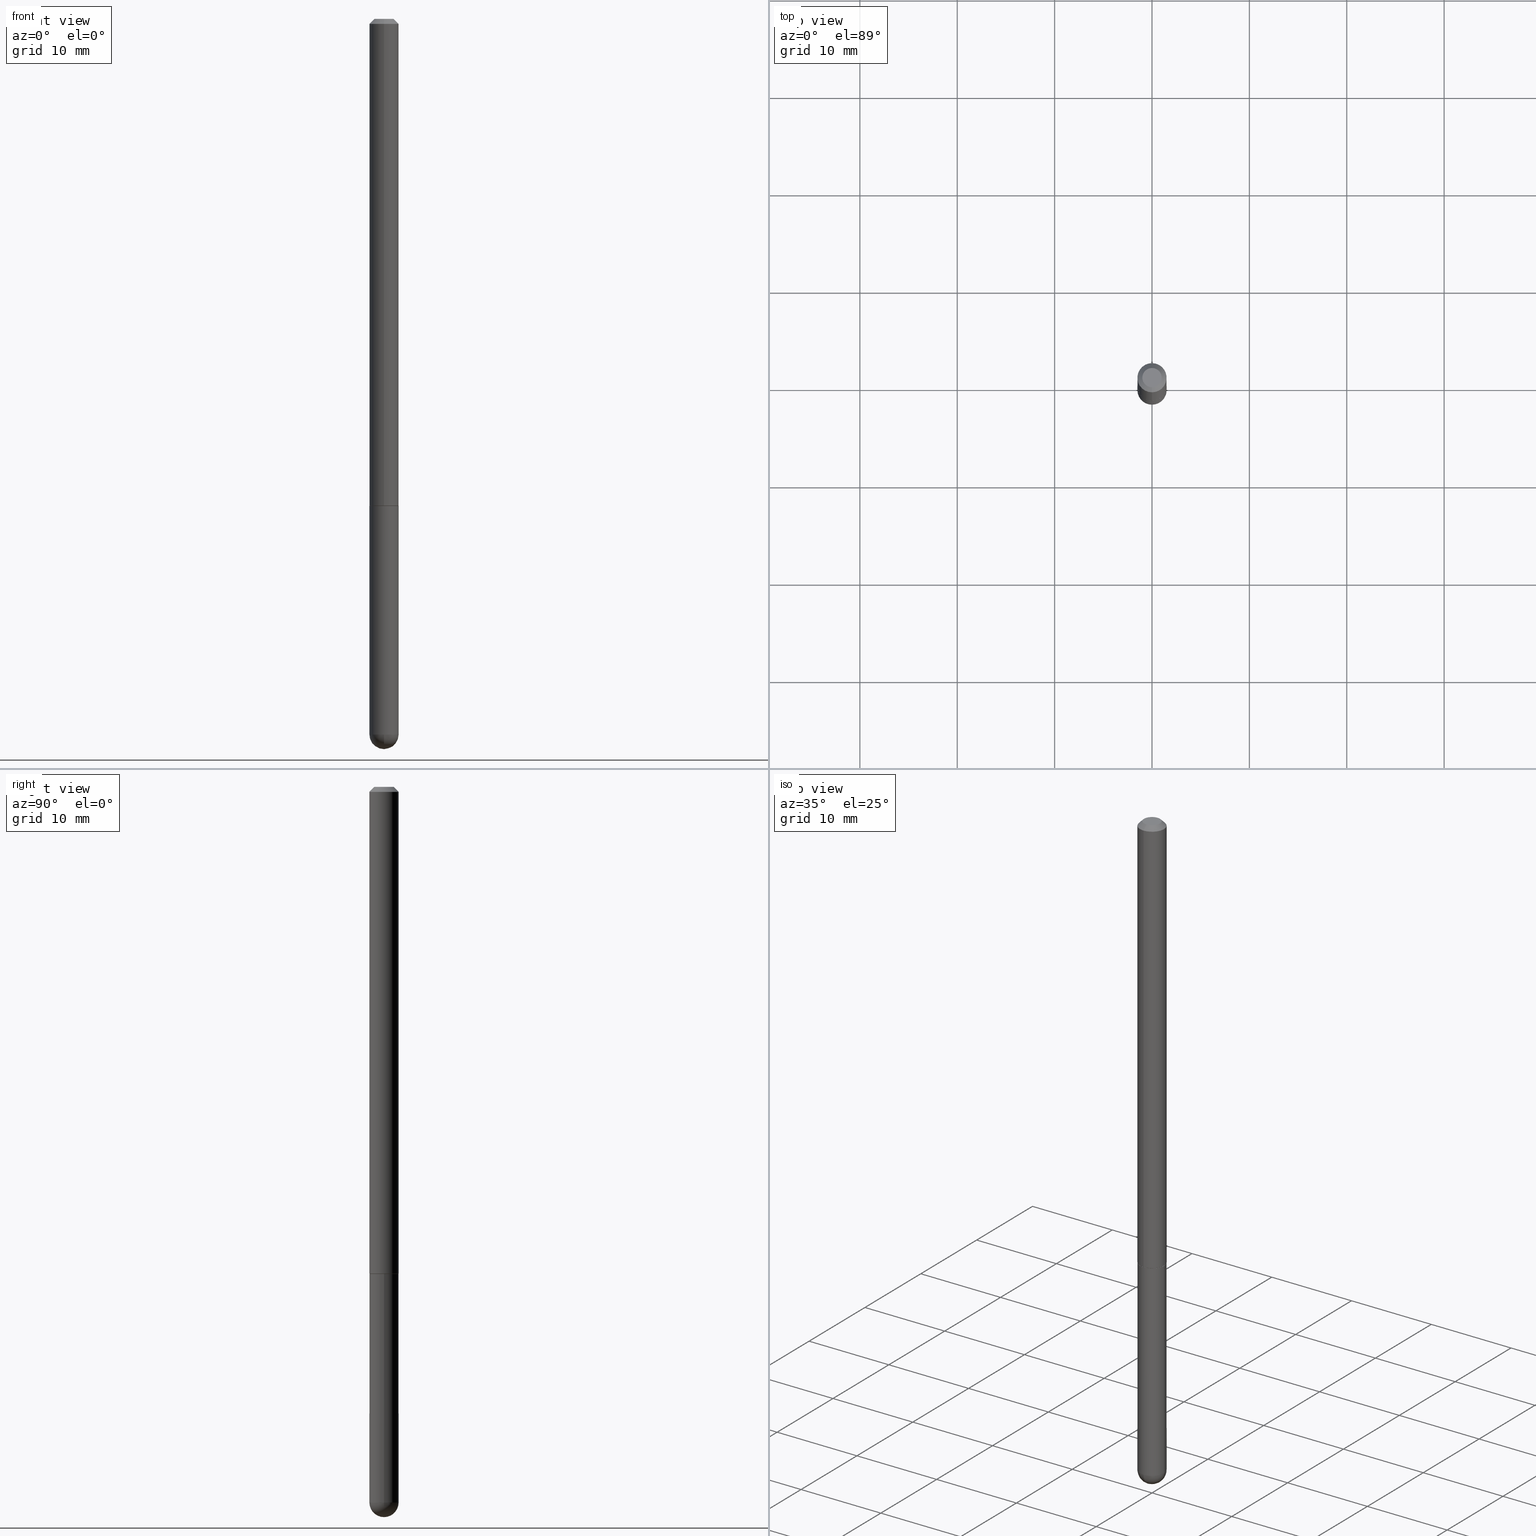
[diagram: canonical four-view strip — front | top / right | iso, engineering-drawing reading convention]
A machine part, canonical four-view strip (front | top / right | iso — engineering-drawing reading convention). The complete STEP part file that produces these views, byte-faithful:
ISO-10303-21;
HEADER;
FILE_DESCRIPTION (( 'STEP AP203' ),
    '1' );
FILE_NAME ('43302.STEP',
    '2024-04-10T11:42:45',
    ( '' ),
    ( '' ),
    'SwSTEP 2.0',
    'SolidWorks 2023',
    '' );
FILE_SCHEMA (( 'CONFIG_CONTROL_DESIGN' ));
ENDSEC;

DATA;
#1 = EDGE_CURVE ( 'NONE', #302, #161, #203, .T. ) ;
#2 = FACE_OUTER_BOUND ( 'NONE', #410, .T. ) ;
#3 = CIRCLE ( 'NONE', #245, 0.05905000000000001914 ) ;
#4 = LENGTH_MEASURE_WITH_UNIT ( LENGTH_MEASURE( 0.02539999999999999897 ), #391 );
#5 = LOCAL_TIME ( 7, 42, 45.00000000000000000, #243 ) ;
#6 = EDGE_LOOP ( 'NONE', ( #208, #60 ) ) ;
#7 = EDGE_LOOP ( 'NONE', ( #69, #233, #79, #101, #328 ) ) ;
#8 = CALENDAR_DATE ( 2024, 10, 4 ) ;
#9 = EDGE_LOOP ( 'NONE', ( #174, #263, #37, #258 ) ) ;
#10 = DATE_AND_TIME ( #323, #140 ) ;
#11 = CLOSED_SHELL ( 'NONE', ( #54, #48, #78, #357, #277, #188, #211, #322 ) ) ;
#12 = AXIS2_PLACEMENT_3D ( 'NONE', #348, #59, #24 ) ;
#13 = ORIENTED_EDGE ( 'NONE', *, *, #106, .F. ) ;
#14 = EDGE_CURVE ( 'NONE', #271, #74, #327, .T. ) ;
#15 = LINE ( 'NONE', #180, #33 ) ;
#16 = DIRECTION ( 'NONE',  ( -6.982962677686265922E-15, -1.000000000000000000, 3.469747663417776213E-15 ) ) ;
#17 = AXIS2_PLACEMENT_3D ( 'NONE', #44, #50, #274 ) ;
#18 = AXIS2_PLACEMENT_3D ( 'NONE', #315, #319, #191 ) ;
#19 = CARTESIAN_POINT ( 'NONE',  ( -4.195754854662709114E-16, -0.05905000000001047605, -2.893749999999999822 ) ) ;
#20 = CARTESIAN_POINT ( 'NONE',  ( -3.365074267906932410E-16, -0.03904999999999995974, 2.038402692538037748E-16 ) ) ;
#21 = LINE ( 'NONE', #116, #403 ) ;
#22 = CIRCLE ( 'NONE', #361, 0.05905000000000001914 ) ;
#23 = ORIENTED_EDGE ( 'NONE', *, *, #249, .T. ) ;
#24 = DIRECTION ( 'NONE',  ( 1.000000000000000000, -6.982962677686266711E-15, 4.876176775795935793E-29 ) ) ;
#25 = EDGE_LOOP ( 'NONE', ( #62, #389, #359, #13 ) ) ;
#26 = DIRECTION ( 'NONE',  ( 1.000000000000000000, -6.982962677686270655E-15, 0.000000000000000000 ) ) ;
#27 = ORIENTED_EDGE ( 'NONE', *, *, #294, .F. ) ;
#28 = CARTESIAN_POINT ( 'NONE',  ( -4.053609834396394049E-16, -0.05805000000000685306, -1.968499999999999472 ) ) ;
#29 = EDGE_LOOP ( 'NONE', ( #268, #229 ) ) ;
#30 = CARTESIAN_POINT ( 'NONE',  ( 4.905212484552284025E-31, -6.962520248246431022E-17, -0.02000000000000006981 ) ) ;
#31 = COORDINATED_UNIVERSAL_TIME_OFFSET ( 5, 0, .BEHIND. ) ;
#32 = VERTEX_POINT ( 'NONE', #236 ) ;
#33 = VECTOR ( 'NONE', #179, 39.37007874015748143 ) ;
#34 = APPLICATION_PROTOCOL_DEFINITION ( 'international standard', 'config_control_design', 1994, #119 ) ;
#35 =( NAMED_UNIT ( * ) PLANE_ANGLE_UNIT ( ) SI_UNIT ( $, .RADIAN. ) );
#36 = FACE_OUTER_BOUND ( 'NONE', #234, .T. ) ;
#37 = ORIENTED_EDGE ( 'NONE', *, *, #193, .F. ) ;
#38 = PERSON_AND_ORGANIZATION_ROLE ( 'design_supplier' ) ;
#39 = CARTESIAN_POINT ( 'NONE',  ( 4.124700581087863588E-16, 0.05804999999999314181, -1.968500000000000139 ) ) ;
#40 = PERSON_AND_ORGANIZATION_ROLE ( 'creator' ) ;
#41 = ORIENTED_EDGE ( 'NONE', *, *, #380, .F. ) ;
#42 = AXIS2_PLACEMENT_3D ( 'NONE', #97, #377, #230 ) ;
#43 = EDGE_CURVE ( 'NONE', #316, #256, #75, .T. ) ;
#44 = CARTESIAN_POINT ( 'NONE',  ( 4.827955387920569283E-29, -6.852860554336525173E-15, -1.968499999999999694 ) ) ;
#45 = DIRECTION ( 'NONE',  ( -4.851104656540954020E-15, -0.7071067811865485719, -0.7071067811865464625 ) ) ;
#46 = CARTESIAN_POINT ( 'NONE',  ( 4.827955387920569283E-29, -6.852860554336525173E-15, -1.968499999999999694 ) ) ;
#47 = AXIS2_PLACEMENT_3D ( 'NONE', #196, #264, #176 ) ;
#48 = ADVANCED_FACE ( 'NONE', ( #36 ), #136, .T. ) ;
#49 = APPROVAL_PERSON_ORGANIZATION ( #321, #64, #105 ) ;
#50 = DIRECTION ( 'NONE',  ( -2.452606242276133797E-29, 3.481260124123203654E-15, 1.000000000000000000 ) ) ;
#51 = ADVANCED_FACE ( 'NONE', ( #107 ), #366, .T. ) ;
#52 = CALENDAR_DATE ( 2024, 10, 4 ) ;
#53 = FACE_OUTER_BOUND ( 'NONE', #293, .T. ) ;
#54 = ADVANCED_FACE ( 'NONE', ( #241 ), #333, .T. ) ;
#55 = CARTESIAN_POINT ( 'NONE',  ( 7.076575357898237682E-29, -1.010347412427735067E-14, -2.893749999999999822 ) ) ;
#56 = ORIENTED_EDGE ( 'NONE', *, *, #190, .F. ) ;
#57 = CLOSED_SHELL ( 'NONE', ( #51, #171, #381, #397, #290 ) ) ;
#58 = CC_DESIGN_APPROVAL ( #64, ( #318 ) ) ;
#59 = DIRECTION ( 'NONE',  ( -2.445468806185136597E-29, 3.491481338843145583E-15, 1.000000000000000000 ) ) ;
#60 = ORIENTED_EDGE ( 'NONE', *, *, #219, .T. ) ;
#61 = CARTESIAN_POINT ( 'NONE',  ( 4.123439461174440441E-16, 0.05904999999998979815, -2.893749999999999822 ) ) ;
#62 = ORIENTED_EDGE ( 'NONE', *, *, #114, .F. ) ;
#63 = FACE_OUTER_BOUND ( 'NONE', #6, .T. ) ;
#64 = APPROVAL ( #270, 'UNSPECIFIED' ) ;
#65 = APPLICATION_CONTEXT ( 'configuration controlled 3d designs of mechanical parts and assemblies' ) ;
#66 = VECTOR ( 'NONE', #330, 39.37007874015748143 ) ;
#67 = CC_DESIGN_APPROVAL ( #170, ( #132 ) ) ;
#68 = CARTESIAN_POINT ( 'NONE',  ( 3.425143193405115234E-16, 0.03904999999999995974, -6.804614644021811144E-17 ) ) ;
#69 = ORIENTED_EDGE ( 'NONE', *, *, #148, .F. ) ;
#70 = ORIENTED_EDGE ( 'NONE', *, *, #338, .F. ) ;
#71 = EDGE_CURVE ( 'NONE', #364, #142, #396, .T. ) ;
#72 = CALENDAR_DATE ( 2024, 10, 4 ) ;
#73 = CARTESIAN_POINT ( 'NONE',  ( 4.123439461173745750E-16, 0.05904999999999994975, -0.02000000000000027450 ) ) ;
#74 = VERTEX_POINT ( 'NONE', #370 ) ;
#75 = CIRCLE ( 'NONE', #215, 0.05905000000000001914 ) ;
#76 = PERSON_AND_ORGANIZATION ( #220, #84 ) ;
#77 = APPROVAL_ROLE ( '' ) ;
#78 = ADVANCED_FACE ( 'NONE', ( #53 ), #287, .T. ) ;
#79 = ORIENTED_EDGE ( 'NONE', *, *, #113, .T. ) ;
#80 = DIRECTION ( 'NONE',  ( 1.000000000000000000, -6.982962677686266711E-15, 4.876176775795935793E-29 ) ) ;
#81 = CC_DESIGN_PERSON_AND_ORGANIZATION_ASSIGNMENT ( #386, #38, ( #131 ) ) ;
#82 = CONICAL_SURFACE ( 'NONE', #130, 0.05804999999999999744, 0.7853981633975165577 ) ;
#83 = DIRECTION ( 'NONE',  ( -4.937700262164884886E-15, -0.7071067811865933139, 0.7071067811865017205 ) ) ;
#84 = ORGANIZATION ( 'UNSPECIFIED', 'UNSPECIFIED', '' ) ;
#85 = MANIFOLD_SOLID_BREP ( 'Body-Move/Copy2[2]', #11 ) ;
#86 = APPROVAL_DATE_TIME ( #213, #64 ) ;
#87 = DIRECTION ( 'NONE',  ( -2.452606242276134078E-29, 3.481260124123204048E-15, 1.000000000000000000 ) ) ;
#88 = CARTESIAN_POINT ( 'NONE',  ( -1.665247566385061000E-45, 2.363673324206124088E-31, 6.789706140679283782E-17 ) ) ;
#89 = CARTESIAN_POINT ( 'NONE',  ( 6.745455579984352556E-29, -1.057765649241740097E-14, -2.893749999999999822 ) ) ;
#90 =( GEOMETRIC_REPRESENTATION_CONTEXT ( 3 ) GLOBAL_UNCERTAINTY_ASSIGNED_CONTEXT ( ( #104 ) ) GLOBAL_UNIT_ASSIGNED_CONTEXT ( ( #168, #35, #355 ) ) REPRESENTATION_CONTEXT ( 'NONE', 'WORKASPACE' ) );
#91 = SHAPE_DEFINITION_REPRESENTATION ( #384, #401 ) ;
#92 = ORIENTED_EDGE ( 'NONE', *, *, #71, .F. ) ;
#93 = FACE_OUTER_BOUND ( 'NONE', #127, .T. ) ;
#94 = LINE ( 'NONE', #222, #217 ) ;
#95 = CARTESIAN_POINT ( 'NONE',  ( 7.076575357898237682E-29, -1.010347412427735067E-14, -2.893749999999999822 ) ) ;
#96 = DIRECTION ( 'NONE',  ( -2.445468806185136597E-29, 3.491481338843145583E-15, 1.000000000000000000 ) ) ;
#97 = CARTESIAN_POINT ( 'NONE',  ( 4.825502781678292621E-29, -6.849379294212400691E-15, -1.967499999999999805 ) ) ;
#98 = PERSON_AND_ORGANIZATION_ROLE ( 'creator' ) ;
#99 = ORIENTED_EDGE ( 'NONE', *, *, #231, .F. ) ;
#100 = DIRECTION ( 'NONE',  ( 1.000000000000000000, 0.000000000000000000, 0.000000000000000000 ) ) ;
#101 = ORIENTED_EDGE ( 'NONE', *, *, #226, .T. ) ;
#102 = DIMENSIONAL_EXPONENTS ( 1.000000000000000000, 0.000000000000000000, 0.000000000000000000, 0.000000000000000000, 0.000000000000000000, 0.000000000000000000, 0.000000000000000000 ) ;
#103 = APPROVAL_ROLE ( '' ) ;
#104 = UNCERTAINTY_MEASURE_WITH_UNIT (LENGTH_MEASURE( 1.000000000000000082E-05 ), #168, 'distance_accuracy_value', 'NONE');
#105 = APPROVAL_ROLE ( '' ) ;
#106 = EDGE_CURVE ( 'NONE', #161, #349, #392, .T. ) ;
#107 = FACE_OUTER_BOUND ( 'NONE', #137, .T. ) ;
#108 = ORIENTED_EDGE ( 'NONE', *, *, #1, .T. ) ;
#109 = DIRECTION ( 'NONE',  ( -2.452606242276133797E-29, 3.481260124123203654E-15, 1.000000000000000000 ) ) ;
#110 = CARTESIAN_POINT ( 'NONE',  ( 4.827955387920569283E-29, -6.852860554336525173E-15, -1.968499999999999694 ) ) ;
#111 = AXIS2_PLACEMENT_3D ( 'NONE', #95, #155, #352 ) ;
#112 = DIRECTION ( 'NONE',  ( -6.982962677686265922E-15, -1.000000000000000000, 4.706025828879006993E-15 ) ) ;
#113 = EDGE_CURVE ( 'NONE', #199, #32, #300, .T. ) ;
#114 = EDGE_CURVE ( 'NONE', #74, #161, #218, .T. ) ;
#115 = DIRECTION ( 'NONE',  ( 2.452606242276133797E-29, -3.481260124123203654E-15, -1.000000000000000000 ) ) ;
#116 = CARTESIAN_POINT ( 'NONE',  ( -0.05905000000000001914, 4.195754854663392958E-16, -2.904631170795522943E-30 ) ) ;
#117 = CIRCLE ( 'NONE', #17, 0.05804999999999999744 ) ;
#118 = AXIS2_PLACEMENT_3D ( 'NONE', #365, #207, #100 ) ;
#119 = APPLICATION_CONTEXT ( 'configuration controlled 3d designs of mechanical parts and assemblies' ) ;
#120 = DIRECTION ( 'NONE',  ( -2.445468806185136597E-29, 3.491481338843145583E-15, 1.000000000000000000 ) ) ;
#121 = PLANE ( 'NONE',  #18 ) ;
#122 = VERTEX_POINT ( 'NONE', #20 ) ;
#123 = FACE_OUTER_BOUND ( 'NONE', #25, .T. ) ;
#124 = VECTOR ( 'NONE', #87, 39.37007874015748143 ) ;
#125 = AXIS2_PLACEMENT_3D ( 'NONE', #382, #311, #383 ) ;
#126 = DIRECTION ( 'NONE',  ( -6.982962677686265922E-15, -1.000000000000000000, 3.469747663417776213E-15 ) ) ;
#127 = EDGE_LOOP ( 'NONE', ( #185, #56 ) ) ;
#128 = CARTESIAN_POINT ( 'NONE',  ( 0.05905000000000001914, -7.285324961630105839E-15, -1.968499999999999694 ) ) ;
#129 = ORIENTED_EDGE ( 'NONE', *, *, #148, .T. ) ;
#130 = AXIS2_PLACEMENT_3D ( 'NONE', #110, #247, #214 ) ;
#131 = PRODUCT_DEFINITION_FORMATION_WITH_SPECIFIED_SOURCE ( 'ANY', '', #162, .NOT_KNOWN. ) ;
#132 = PRODUCT_DEFINITION ( 'UNKNOWN', '', #131, #337 ) ;
#133 = DIRECTION ( 'NONE',  ( 1.000000000000000000, -6.982962677686270655E-15, 0.000000000000000000 ) ) ;
#134 = DATE_AND_TIME ( #8, #178 ) ;
#135 = PERSON_AND_ORGANIZATION_ROLE ( 'design_owner' ) ;
#136 = CYLINDRICAL_SURFACE ( 'NONE', #177, 0.05905000000000010935 ) ;
#137 = EDGE_LOOP ( 'NONE', ( #154, #129, #143, #331, #284 ) ) ;
#138 = CC_DESIGN_DATE_AND_TIME_ASSIGNMENT ( #134, #265, ( #318 ) ) ;
#139 = EDGE_CURVE ( 'NONE', #364, #271, #117, .T. ) ;
#140 = LOCAL_TIME ( 7, 42, 45.00000000000000000, #261 ) ;
#141 = COORDINATED_UNIVERSAL_TIME_OFFSET ( 5, 0, .BEHIND. ) ;
#142 = VERTEX_POINT ( 'NONE', #210 ) ;
#143 = ORIENTED_EDGE ( 'NONE', *, *, #371, .F. ) ;
#144 = ORIENTED_EDGE ( 'NONE', *, *, #71, .T. ) ;
#145 = CARTESIAN_POINT ( 'NONE',  ( -1.665247566385061000E-45, 2.363673324206124088E-31, 6.789706140679283782E-17 ) ) ;
#146 = VECTOR ( 'NONE', #272, 39.37007874015748143 ) ;
#147 = CARTESIAN_POINT ( 'NONE',  ( 4.123439461173745750E-16, 0.05904999999999994975, -0.02000000000000027450 ) ) ;
#148 = EDGE_CURVE ( 'NONE', #354, #316, #21, .T. ) ;
#149 = CARTESIAN_POINT ( 'NONE',  ( -4.053609834396394049E-16, -0.05805000000000685306, -1.968499999999999472 ) ) ;
#150 = FACE_OUTER_BOUND ( 'NONE', #298, .T. ) ;
#151 = DIRECTION ( 'NONE',  ( 6.982962677686265922E-15, 1.000000000000000000, 0.000000000000000000 ) ) ;
#152 = AXIS2_PLACEMENT_3D ( 'NONE', #89, #182, #151 ) ;
#153 = DIRECTION ( 'NONE',  ( 1.000000000000000000, -6.982962677686265922E-15, 4.883557194083112340E-29 ) ) ;
#154 = ORIENTED_EDGE ( 'NONE', *, *, #338, .T. ) ;
#155 = DIRECTION ( 'NONE',  ( -2.445468806185136597E-29, 3.491481338843145583E-15, 1.000000000000000000 ) ) ;
#156 = ORIENTED_EDGE ( 'NONE', *, *, #206, .F. ) ;
#157 = FACE_OUTER_BOUND ( 'NONE', #7, .T. ) ;
#158 = CC_DESIGN_DATE_AND_TIME_ASSIGNMENT ( #198, #363, ( #132 ) ) ;
#159 = LOCAL_TIME ( 7, 42, 45.00000000000000000, #31 ) ;
#160 = CARTESIAN_POINT ( 'NONE',  ( 6.745455579984352556E-29, -1.057765649241740097E-14, -2.893749999999999822 ) ) ;
#161 = VERTEX_POINT ( 'NONE', #147 ) ;
#162 = PRODUCT ( '43302', '43302', '', ( #205 ) ) ;
#163 = DIRECTION ( 'NONE',  ( 6.982962677686265922E-15, 1.000000000000000000, -3.469747663417776213E-15 ) ) ;
#164 = VERTEX_POINT ( 'NONE', #339 ) ;
#165 = CIRCLE ( 'NONE', #225, 0.03904999999999995974 ) ;
#166 = APPROVAL_PERSON_ORGANIZATION ( #237, #289, #77 ) ;
#167 = APPROVAL_STATUS ( 'not_yet_approved' ) ;
#168 =( CONVERSION_BASED_UNIT ( 'INCH', #4 ) LENGTH_UNIT ( ) NAMED_UNIT ( #102 ) );
#169 = CARTESIAN_POINT ( 'NONE',  ( 0.000000000000000000, 0.000000000000000000, 0.000000000000000000 ) ) ;
#170 = APPROVAL ( #266, 'UNSPECIFIED' ) ;
#171 = ADVANCED_FACE ( 'NONE', ( #150 ), #276, .T. ) ;
#172 = PERSON_AND_ORGANIZATION ( #220, #84 ) ;
#173 = ORIENTED_EDGE ( 'NONE', *, *, #356, .T. ) ;
#174 = ORIENTED_EDGE ( 'NONE', *, *, #249, .F. ) ;
#175 = DIRECTION ( 'NONE',  ( -2.452606242276133797E-29, 3.481260124123203654E-15, 1.000000000000000000 ) ) ;
#176 = DIRECTION ( 'NONE',  ( -6.982962677686265922E-15, -1.000000000000000000, 4.706025828879006993E-15 ) ) ;
#177 = AXIS2_PLACEMENT_3D ( 'NONE', #169, #109, #267 ) ;
#178 = LOCAL_TIME ( 7, 42, 45.00000000000000000, #141 ) ;
#179 = DIRECTION ( 'NONE',  ( -2.445468806185136877E-29, 3.491481338843145188E-15, 1.000000000000000000 ) ) ;
#180 = CARTESIAN_POINT ( 'NONE',  ( 0.05905000000000001914, -4.123439461173741806E-16, 2.879382386107500921E-30 ) ) ;
#181 = PRODUCT_RELATED_PRODUCT_CATEGORY ( 'detail', '', ( #162 ) ) ;
#182 = DIRECTION ( 'NONE',  ( -1.000000000000000000, 6.982962677686265922E-15, -4.883557194083112340E-29 ) ) ;
#183 = CARTESIAN_POINT ( 'NONE',  ( 4.825502781678292621E-29, -6.849379294212400691E-15, -1.967499999999999805 ) ) ;
#184 = AXIS2_PLACEMENT_3D ( 'NONE', #405, #189, #253 ) ;
#185 = ORIENTED_EDGE ( 'NONE', *, *, #139, .F. ) ;
#186 = CARTESIAN_POINT ( 'NONE',  ( -0.05905000000000001914, -8.068652084428701697E-15, -1.968499999999999694 ) ) ;
#187 = EDGE_LOOP ( 'NONE', ( #312, #273, #374, #92 ) ) ;
#188 = ADVANCED_FACE ( 'NONE', ( #373 ), #82, .T. ) ;
#189 = DIRECTION ( 'NONE',  ( -1.000000000000000000, 6.982962677686265922E-15, -4.883557194083112340E-29 ) ) ;
#190 = EDGE_CURVE ( 'NONE', #271, #364, #262, .T. ) ;
#191 = DIRECTION ( 'NONE',  ( 6.982962677686265922E-15, 1.000000000000000000, -3.481260124123204048E-15 ) ) ;
#192 = DIRECTION ( 'NONE',  ( -6.982962677686265922E-15, -1.000000000000000000, 4.626330217890353559E-15 ) ) ;
#193 = EDGE_CURVE ( 'NONE', #32, #320, #3, .T. ) ;
#194 = ORIENTED_EDGE ( 'NONE', *, *, #206, .T. ) ;
#195 = SECURITY_CLASSIFICATION_LEVEL ( 'unclassified' ) ;
#196 = CARTESIAN_POINT ( 'NONE',  ( 4.827955387920569283E-29, -6.852860554336525173E-15, -1.968499999999999694 ) ) ;
#197 = EDGE_LOOP ( 'NONE', ( #314, #242, #144, #347 ) ) ;
#198 = DATE_AND_TIME ( #72, #201 ) ;
#199 = VERTEX_POINT ( 'NONE', #19 ) ;
#200 = AXIS2_PLACEMENT_3D ( 'NONE', #244, #393, #80 ) ;
#201 = LOCAL_TIME ( 7, 42, 45.00000000000000000, #240 ) ;
#202 = PERSON_AND_ORGANIZATION ( #220, #84 ) ;
#203 = LINE ( 'NONE', #73, #66 ) ;
#204 = ORIENTED_EDGE ( 'NONE', *, *, #324, .F. ) ;
#205 = MECHANICAL_CONTEXT ( 'NONE', #65, 'mechanical' ) ;
#206 = EDGE_CURVE ( 'NONE', #122, #349, #336, .T. ) ;
#207 = DIRECTION ( 'NONE',  ( 0.000000000000000000, 0.000000000000000000, 1.000000000000000000 ) ) ;
#208 = ORIENTED_EDGE ( 'NONE', *, *, #231, .T. ) ;
#209 = AXIS2_PLACEMENT_3D ( 'NONE', #183, #376, #192 ) ;
#210 = CARTESIAN_POINT ( 'NONE',  ( -4.123439461173271448E-16, -0.05905000000000704824, -1.967499999999999361 ) ) ;
#211 = ADVANCED_FACE ( 'NONE', ( #93 ), #251, .F. ) ;
#212 = CARTESIAN_POINT ( 'NONE',  ( 7.076575357898237682E-29, -1.010347412427735067E-14, -2.893749999999999822 ) ) ;
#213 = DATE_AND_TIME ( #52, #5 ) ;
#214 = DIRECTION ( 'NONE',  ( -6.982962677686265922E-15, -1.000000000000000000, 4.706025828879006993E-15 ) ) ;
#215 = AXIS2_PLACEMENT_3D ( 'NONE', #301, #325, #133 ) ;
#216 = CC_DESIGN_PERSON_AND_ORGANIZATION_ASSIGNMENT ( #202, #40, ( #131 ) ) ;
#217 = VECTOR ( 'NONE', #412, 39.37007874015748143 ) ;
#218 = LINE ( 'NONE', #309, #124 ) ;
#219 = EDGE_CURVE ( 'NONE', #122, #302, #165, .T. ) ;
#220 = PERSON ( 'UNSPECIFIED', 'UNSPECIFIED', 'UNSPECIFIED', ('UNSPECIFIED'), ('UNSPECIFIED'), ('UNSPECIFIED') ) ;
#221 = DIRECTION ( 'NONE',  ( -1.000000000000000000, 7.105427357601001070E-15, -4.926315508542082329E-29 ) ) ;
#222 = CARTESIAN_POINT ( 'NONE',  ( -4.123439461173747722E-16, -0.05905000000000010935, 2.055684103294755676E-16 ) ) ;
#223 = MANIFOLD_SOLID_BREP ( 'Body-Move/Copy2[1]', #57 ) ;
#224 = DIRECTION ( 'NONE',  ( 2.452606242276133797E-29, -3.481260124123203654E-15, -1.000000000000000000 ) ) ;
#225 = AXIS2_PLACEMENT_3D ( 'NONE', #88, #175, #303 ) ;
#226 = EDGE_CURVE ( 'NONE', #32, #256, #15, .T. ) ;
#227 = CARTESIAN_POINT ( 'NONE',  ( -0.05905000000000001914, -8.068652084428701697E-15, -2.893749999999999822 ) ) ;
#228 = CARTESIAN_POINT ( 'NONE',  ( 4.813905344975440714E-29, -6.872981015512730918E-15, -1.968499999999999694 ) ) ;
#229 = ORIENTED_EDGE ( 'NONE', *, *, #43, .T. ) ;
#230 = DIRECTION ( 'NONE',  ( -6.982962677686265922E-15, -1.000000000000000000, 4.626330217890353559E-15 ) ) ;
#231 = EDGE_CURVE ( 'NONE', #302, #122, #275, .T. ) ;
#232 = AXIS2_PLACEMENT_3D ( 'NONE', #402, #115, #278 ) ;
#233 = ORIENTED_EDGE ( 'NONE', *, *, #324, .T. ) ;
#234 = EDGE_LOOP ( 'NONE', ( #173, #350, #344, #41 ) ) ;
#235 = CALENDAR_DATE ( 2024, 10, 4 ) ;
#236 = CARTESIAN_POINT ( 'NONE',  ( 0.05905000000000001914, -8.900571516012416899E-15, -2.893749999999999822 ) ) ;
#237 = PERSON_AND_ORGANIZATION ( #220, #84 ) ;
#238 = CIRCLE ( 'NONE', #111, 0.05905000000000001914 ) ;
#239 = CC_DESIGN_PERSON_AND_ORGANIZATION_ASSIGNMENT ( #358, #98, ( #132 ) ) ;
#240 = COORDINATED_UNIVERSAL_TIME_OFFSET ( 5, 0, .BEHIND. ) ;
#241 = FACE_OUTER_BOUND ( 'NONE', #187, .T. ) ;
#242 = ORIENTED_EDGE ( 'NONE', *, *, #190, .T. ) ;
#243 = COORDINATED_UNIVERSAL_TIME_OFFSET ( 5, 0, .BEHIND. ) ;
#244 = CARTESIAN_POINT ( 'NONE',  ( 0.000000000000000000, 0.000000000000000000, 0.000000000000000000 ) ) ;
#245 = AXIS2_PLACEMENT_3D ( 'NONE', #212, #341, #282 ) ;
#246 = AXIS2_PLACEMENT_3D ( 'NONE', #30, #224, #163 ) ;
#247 = DIRECTION ( 'NONE',  ( -2.452606242276133797E-29, 3.481260124123203654E-15, 1.000000000000000000 ) ) ;
#248 = CARTESIAN_POINT ( 'NONE',  ( -4.051124067684085231E-16, -0.05905000000000008159, -0.01999999999999986511 ) ) ;
#249 = EDGE_CURVE ( 'NONE', #164, #199, #250, .T. ) ;
#250 = CIRCLE ( 'NONE', #326, 0.05905000000000025506 ) ;
#251 = PLANE ( 'NONE',  #345 ) ;
#252 = DIRECTION ( 'NONE',  ( 1.000000000000000000, -6.982962677686270655E-15, 0.000000000000000000 ) ) ;
#253 = DIRECTION ( 'NONE',  ( 6.982962677686265922E-15, 1.000000000000000000, 0.000000000000000000 ) ) ;
#254 = DIRECTION ( 'NONE',  ( 6.982962677686266711E-15, 1.000000000000000000, 0.000000000000000000 ) ) ;
#255 = CC_DESIGN_SECURITY_CLASSIFICATION ( #318, ( #131 ) ) ;
#256 = VERTEX_POINT ( 'NONE', #128 ) ;
#257 = PLANE ( 'NONE',  #125 ) ;
#258 = ORIENTED_EDGE ( 'NONE', *, *, #113, .F. ) ;
#259 = CC_DESIGN_PERSON_AND_ORGANIZATION_ASSIGNMENT ( #172, #297, ( #318 ) ) ;
#260 = DIRECTION ( 'NONE',  ( -2.452606242276133797E-29, 3.481260124123203654E-15, 1.000000000000000000 ) ) ;
#261 = COORDINATED_UNIVERSAL_TIME_OFFSET ( 5, 0, .BEHIND. ) ;
#262 = CIRCLE ( 'NONE', #368, 0.05804999999999999744 ) ;
#263 = ORIENTED_EDGE ( 'NONE', *, *, #294, .T. ) ;
#264 = DIRECTION ( 'NONE',  ( -2.452606242276133797E-29, 3.481260124123203654E-15, 1.000000000000000000 ) ) ;
#265 = DATE_TIME_ROLE ( 'classification_date' ) ;
#266 = APPROVAL_STATUS ( 'not_yet_approved' ) ;
#267 = DIRECTION ( 'NONE',  ( -6.982962677686265922E-15, -1.000000000000000000, 3.481260124123203654E-15 ) ) ;
#268 = ORIENTED_EDGE ( 'NONE', *, *, #371, .T. ) ;
#269 = AXIS2_PLACEMENT_3D ( 'NONE', #160, #153, #254 ) ;
#270 = APPROVAL_STATUS ( 'not_yet_approved' ) ;
#271 = VERTEX_POINT ( 'NONE', #292 ) ;
#272 = DIRECTION ( 'NONE',  ( 5.024295867788404755E-15, 0.7071067811865981989, 0.7071067811864968355 ) ) ;
#273 = ORIENTED_EDGE ( 'NONE', *, *, #14, .T. ) ;
#274 = DIRECTION ( 'NONE',  ( -6.982962677686265922E-15, -1.000000000000000000, 4.706025828879006993E-15 ) ) ;
#275 = CIRCLE ( 'NONE', #340, 0.03904999999999995974 ) ;
#276 = SPHERICAL_SURFACE ( 'NONE', #152, 0.05905000000000025506 ) ;
#277 = ADVANCED_FACE ( 'NONE', ( #123 ), #317, .T. ) ;
#278 = DIRECTION ( 'NONE',  ( 6.982962677686265922E-15, 1.000000000000000000, -3.469747663417776213E-15 ) ) ;
#279 = CARTESIAN_POINT ( 'NONE',  ( 6.745455579984352556E-29, -1.057765649241740097E-14, -2.893749999999999822 ) ) ;
#280 = AXIS2_PLACEMENT_3D ( 'NONE', #400, #120, #304 ) ;
#281 = CIRCLE ( 'NONE', #42, 0.05905000000000020649 ) ;
#282 = DIRECTION ( 'NONE',  ( 1.000000000000000000, -6.982962677686270655E-15, 0.000000000000000000 ) ) ;
#283 = CARTESIAN_POINT ( 'NONE',  ( -4.051124067684085231E-16, -0.05905000000000008159, -0.01999999999999986511 ) ) ;
#284 = ORIENTED_EDGE ( 'NONE', *, *, #193, .T. ) ;
#285 = FACE_OUTER_BOUND ( 'NONE', #9, .T. ) ;
#286 = ORIENTED_EDGE ( 'NONE', *, *, #106, .T. ) ;
#287 = CONICAL_SURFACE ( 'NONE', #232, 0.05905000000000001914, 0.7853981633974463916 ) ;
#288 = CYLINDRICAL_SURFACE ( 'NONE', #12, 0.05905000000000001914 ) ;
#289 = APPROVAL ( #167, 'UNSPECIFIED' ) ;
#290 = ADVANCED_FACE ( 'NONE', ( #157 ), #288, .T. ) ;
#291 = DIRECTION ( 'NONE',  ( -2.445468806185136597E-29, 3.491481338843145583E-15, 1.000000000000000000 ) ) ;
#292 = CARTESIAN_POINT ( 'NONE',  ( 4.160227717875875531E-16, 0.05804999999999314181, -1.968500000000000139 ) ) ;
#293 = EDGE_LOOP ( 'NONE', ( #406, #194, #390, #296 ) ) ;
#294 = EDGE_CURVE ( 'NONE', #164, #320, #388, .T. ) ;
#295 = VECTOR ( 'NONE', #45, 39.37007874015748143 ) ;
#296 = ORIENTED_EDGE ( 'NONE', *, *, #1, .F. ) ;
#297 = PERSON_AND_ORGANIZATION_ROLE ( 'classification_officer' ) ;
#298 = EDGE_LOOP ( 'NONE', ( #27, #23, #204, #70 ) ) ;
#299 = APPROVAL_DATE_TIME ( #332, #170 ) ;
#300 = CIRCLE ( 'NONE', #280, 0.05905000000000001914 ) ;
#301 = CARTESIAN_POINT ( 'NONE',  ( 4.813905344975440714E-29, -6.872981015512730918E-15, -1.968499999999999694 ) ) ;
#302 = VERTEX_POINT ( 'NONE', #68 ) ;
#303 = DIRECTION ( 'NONE',  ( -6.982962677686265133E-15, -1.000000000000000000, 3.481260124123203259E-15 ) ) ;
#304 = DIRECTION ( 'NONE',  ( 1.000000000000000000, -6.982962677686270655E-15, 0.000000000000000000 ) ) ;
#305 = AXIS2_PLACEMENT_3D ( 'NONE', #342, #404, #16 ) ;
#306 = CIRCLE ( 'NONE', #362, 0.05905000000000001914 ) ;
#307 = DIRECTION ( 'NONE',  ( -2.452606242276133797E-29, 3.481260124123203654E-15, 1.000000000000000000 ) ) ;
#308 = CC_DESIGN_PERSON_AND_ORGANIZATION_ASSIGNMENT ( #360, #135, ( #162 ) ) ;
#309 = CARTESIAN_POINT ( 'NONE',  ( 4.195754854663398874E-16, 0.05905000000000010935, -2.055684103294755676E-16 ) ) ;
#310 = DIRECTION ( 'NONE',  ( -2.445468806185136877E-29, 3.491481338843145188E-15, 1.000000000000000000 ) ) ;
#311 = DIRECTION ( 'NONE',  ( 2.438088387897960049E-29, -3.491481338843145188E-15, -1.000000000000000000 ) ) ;
#312 = ORIENTED_EDGE ( 'NONE', *, *, #139, .T. ) ;
#313 = DIRECTION ( 'NONE',  ( -6.982962677686265922E-15, -1.000000000000000000, 3.481260124123203654E-15 ) ) ;
#314 = ORIENTED_EDGE ( 'NONE', *, *, #14, .F. ) ;
#315 = CARTESIAN_POINT ( 'NONE',  ( 2.726846925636483731E-16, 0.03904999999999995974, -1.019946771436145119E-16 ) ) ;
#316 = VERTEX_POINT ( 'NONE', #186 ) ;
#317 = CYLINDRICAL_SURFACE ( 'NONE', #353, 0.05905000000000010935 ) ;
#318 = SECURITY_CLASSIFICATION ( '', '', #195 ) ;
#319 = DIRECTION ( 'NONE',  ( 2.452606242276133237E-29, -3.481260124123204048E-15, -1.000000000000000000 ) ) ;
#320 = VERTEX_POINT ( 'NONE', #61 ) ;
#321 = PERSON_AND_ORGANIZATION ( #220, #84 ) ;
#322 = ADVANCED_FACE ( 'NONE', ( #63 ), #121, .F. ) ;
#323 = CALENDAR_DATE ( 2024, 10, 4 ) ;
#324 = EDGE_CURVE ( 'NONE', #354, #199, #238, .T. ) ;
#325 = DIRECTION ( 'NONE',  ( -2.445468806185136597E-29, 3.491481338843145583E-15, 1.000000000000000000 ) ) ;
#326 = AXIS2_PLACEMENT_3D ( 'NONE', #279, #221, #351 ) ;
#327 = LINE ( 'NONE', #39, #146 ) ;
#328 = ORIENTED_EDGE ( 'NONE', *, *, #43, .F. ) ;
#329 = APPROVAL_DATE_TIME ( #10, #289 ) ;
#330 = DIRECTION ( 'NONE',  ( 4.937700262164537787E-15, 0.7071067811865436870, -0.7071067811865513475 ) ) ;
#331 = ORIENTED_EDGE ( 'NONE', *, *, #226, .F. ) ;
#332 = DATE_AND_TIME ( #235, #159 ) ;
#333 = CONICAL_SURFACE ( 'NONE', #47, 0.05804999999999999744, 0.7853981633975165577 ) ;
#334 = AXIS2_PLACEMENT_3D ( 'NONE', #55, #96, #26 ) ;
#335 = DIRECTION ( 'NONE',  ( -6.982962677686265922E-15, -1.000000000000000000, 3.481260124123204048E-15 ) ) ;
#336 = LINE ( 'NONE', #248, #295 ) ;
#337 = DESIGN_CONTEXT ( 'detailed design', #119, 'design' ) ;
#338 = EDGE_CURVE ( 'NONE', #320, #354, #398, .T. ) ;
#339 = CARTESIAN_POINT ( 'NONE',  ( 6.892385391458386628E-29, -1.078021269580160693E-14, -2.952799999999999869 ) ) ;
#340 = AXIS2_PLACEMENT_3D ( 'NONE', #145, #307, #375 ) ;
#341 = DIRECTION ( 'NONE',  ( -2.445468806185136597E-29, 3.491481338843145583E-15, 1.000000000000000000 ) ) ;
#342 = CARTESIAN_POINT ( 'NONE',  ( 4.905212484552284025E-31, -6.962520248246431022E-17, -0.02000000000000006981 ) ) ;
#343 = CARTESIAN_POINT ( 'NONE',  ( 0.000000000000000000, 0.000000000000000000, 0.000000000000000000 ) ) ;
#344 = ORIENTED_EDGE ( 'NONE', *, *, #387, .F. ) ;
#345 = AXIS2_PLACEMENT_3D ( 'NONE', #372, #367, #335 ) ;
#346 = FACE_OUTER_BOUND ( 'NONE', #29, .T. ) ;
#347 = ORIENTED_EDGE ( 'NONE', *, *, #411, .F. ) ;
#348 = CARTESIAN_POINT ( 'NONE',  ( 0.000000000000000000, 0.000000000000000000, 0.000000000000000000 ) ) ;
#349 = VERTEX_POINT ( 'NONE', #283 ) ;
#350 = ORIENTED_EDGE ( 'NONE', *, *, #114, .T. ) ;
#351 = DIRECTION ( 'NONE',  ( -7.105427357601001070E-15, -1.000000000000000000, 0.000000000000000000 ) ) ;
#352 = DIRECTION ( 'NONE',  ( 1.000000000000000000, -6.982962677686270655E-15, 0.000000000000000000 ) ) ;
#353 = AXIS2_PLACEMENT_3D ( 'NONE', #343, #379, #313 ) ;
#354 = VERTEX_POINT ( 'NONE', #227 ) ;
#355 =( NAMED_UNIT ( * ) SI_UNIT ( $, .STERADIAN. ) SOLID_ANGLE_UNIT ( ) );
#356 = EDGE_CURVE ( 'NONE', #142, #74, #394, .T. ) ;
#357 = ADVANCED_FACE ( 'NONE', ( #2 ), #408, .T. ) ;
#358 = PERSON_AND_ORGANIZATION ( #220, #84 ) ;
#359 = ORIENTED_EDGE ( 'NONE', *, *, #380, .T. ) ;
#360 = PERSON_AND_ORGANIZATION ( #220, #84 ) ;
#361 = AXIS2_PLACEMENT_3D ( 'NONE', #228, #291, #252 ) ;
#362 = AXIS2_PLACEMENT_3D ( 'NONE', #409, #260, #126 ) ;
#363 = DATE_TIME_ROLE ( 'creation_date' ) ;
#364 = VERTEX_POINT ( 'NONE', #28 ) ;
#365 = CARTESIAN_POINT ( 'NONE',  ( 0.000000000000000000, 0.000000000000000000, 0.000000000000000000 ) ) ;
#366 = CYLINDRICAL_SURFACE ( 'NONE', #200, 0.05905000000000001914 ) ;
#367 = DIRECTION ( 'NONE',  ( -2.452606242276133237E-29, 3.481260124123204048E-15, 1.000000000000000000 ) ) ;
#368 = AXIS2_PLACEMENT_3D ( 'NONE', #46, #399, #112 ) ;
#369 = CC_DESIGN_APPROVAL ( #289, ( #131 ) ) ;
#370 = CARTESIAN_POINT ( 'NONE',  ( 4.195754854663646379E-16, 0.05904999999999335780, -1.967500000000000027 ) ) ;
#371 = EDGE_CURVE ( 'NONE', #256, #316, #22, .T. ) ;
#372 = CARTESIAN_POINT ( 'NONE',  ( 4.827955387920569283E-29, -6.852860554336525173E-15, -1.968499999999999694 ) ) ;
#373 = FACE_OUTER_BOUND ( 'NONE', #197, .T. ) ;
#374 = ORIENTED_EDGE ( 'NONE', *, *, #356, .F. ) ;
#375 = DIRECTION ( 'NONE',  ( -6.982962677686265133E-15, -1.000000000000000000, 3.481260124123203259E-15 ) ) ;
#376 = DIRECTION ( 'NONE',  ( -2.452606242276133797E-29, 3.481260124123203654E-15, 1.000000000000000000 ) ) ;
#377 = DIRECTION ( 'NONE',  ( -2.452606242276133797E-29, 3.481260124123203654E-15, 1.000000000000000000 ) ) ;
#378 = APPROVAL_PERSON_ORGANIZATION ( #76, #170, #103 ) ;
#379 = DIRECTION ( 'NONE',  ( -2.452606242276133797E-29, 3.481260124123203654E-15, 1.000000000000000000 ) ) ;
#380 = EDGE_CURVE ( 'NONE', #142, #349, #94, .T. ) ;
#381 = ADVANCED_FACE ( 'NONE', ( #285 ), #407, .T. ) ;
#382 = CARTESIAN_POINT ( 'NONE',  ( 4.123439461174222518E-16, 0.05904999999999314270, -1.968500000000000139 ) ) ;
#383 = DIRECTION ( 'NONE',  ( -1.000000000000000000, 6.982962677686265922E-15, -4.876176775795935793E-29 ) ) ;
#384 = PRODUCT_DEFINITION_SHAPE ( 'NONE', 'NONE',  #132 ) ;
#385 = VECTOR ( 'NONE', #83, 39.37007874015748143 ) ;
#386 = PERSON_AND_ORGANIZATION ( #220, #84 ) ;
#387 = EDGE_CURVE ( 'NONE', #349, #161, #306, .T. ) ;
#388 = CIRCLE ( 'NONE', #269, 0.05905000000000025506 ) ;
#389 = ORIENTED_EDGE ( 'NONE', *, *, #411, .T. ) ;
#390 = ORIENTED_EDGE ( 'NONE', *, *, #387, .T. ) ;
#391 =( LENGTH_UNIT ( ) NAMED_UNIT ( * ) SI_UNIT ( $, .METRE. ) );
#392 = CIRCLE ( 'NONE', #305, 0.05905000000000001914 ) ;
#393 = DIRECTION ( 'NONE',  ( -2.445468806185136597E-29, 3.491481338843145583E-15, 1.000000000000000000 ) ) ;
#394 = CIRCLE ( 'NONE', #209, 0.05905000000000020649 ) ;
#395 = APPLICATION_PROTOCOL_DEFINITION ( 'international standard', 'config_control_design', 1994, #65 ) ;
#396 = LINE ( 'NONE', #149, #385 ) ;
#397 = ADVANCED_FACE ( 'NONE', ( #346 ), #257, .F. ) ;
#398 = CIRCLE ( 'NONE', #334, 0.05905000000000001914 ) ;
#399 = DIRECTION ( 'NONE',  ( -2.452606242276133797E-29, 3.481260124123203654E-15, 1.000000000000000000 ) ) ;
#400 = CARTESIAN_POINT ( 'NONE',  ( 7.076575357898237682E-29, -1.010347412427735067E-14, -2.893749999999999822 ) ) ;
#401 = ADVANCED_BREP_SHAPE_REPRESENTATION ( '43302', ( #223, #85, #118 ), #90 ) ;
#402 = CARTESIAN_POINT ( 'NONE',  ( 4.905212484552284025E-31, -6.962520248246431022E-17, -0.02000000000000006981 ) ) ;
#403 = VECTOR ( 'NONE', #310, 39.37007874015748143 ) ;
#404 = DIRECTION ( 'NONE',  ( -2.452606242276133797E-29, 3.481260124123203654E-15, 1.000000000000000000 ) ) ;
#405 = CARTESIAN_POINT ( 'NONE',  ( 6.745455579984352556E-29, -1.057765649241740097E-14, -2.893749999999999822 ) ) ;
#406 = ORIENTED_EDGE ( 'NONE', *, *, #219, .F. ) ;
#407 = SPHERICAL_SURFACE ( 'NONE', #184, 0.05905000000000025506 ) ;
#408 = CONICAL_SURFACE ( 'NONE', #246, 0.05905000000000001914, 0.7853981633974463916 ) ;
#409 = CARTESIAN_POINT ( 'NONE',  ( 4.905212484552284025E-31, -6.962520248246431022E-17, -0.02000000000000006981 ) ) ;
#410 = EDGE_LOOP ( 'NONE', ( #156, #99, #108, #286 ) ) ;
#411 = EDGE_CURVE ( 'NONE', #74, #142, #281, .T. ) ;
#412 = DIRECTION ( 'NONE',  ( -2.452606242276134078E-29, 3.481260124123204048E-15, 1.000000000000000000 ) ) ;
ENDSEC;
END-ISO-10303-21;
